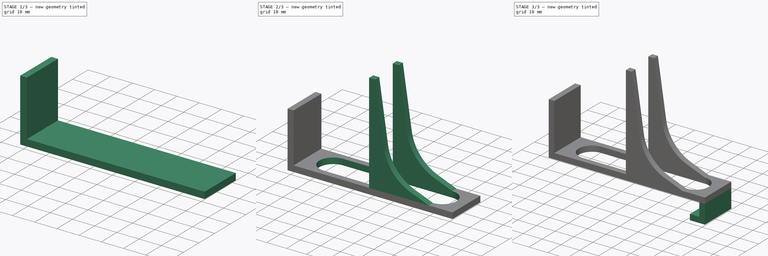
[diagram: build sequence overview — one tinted view per stage of 3, left to right]
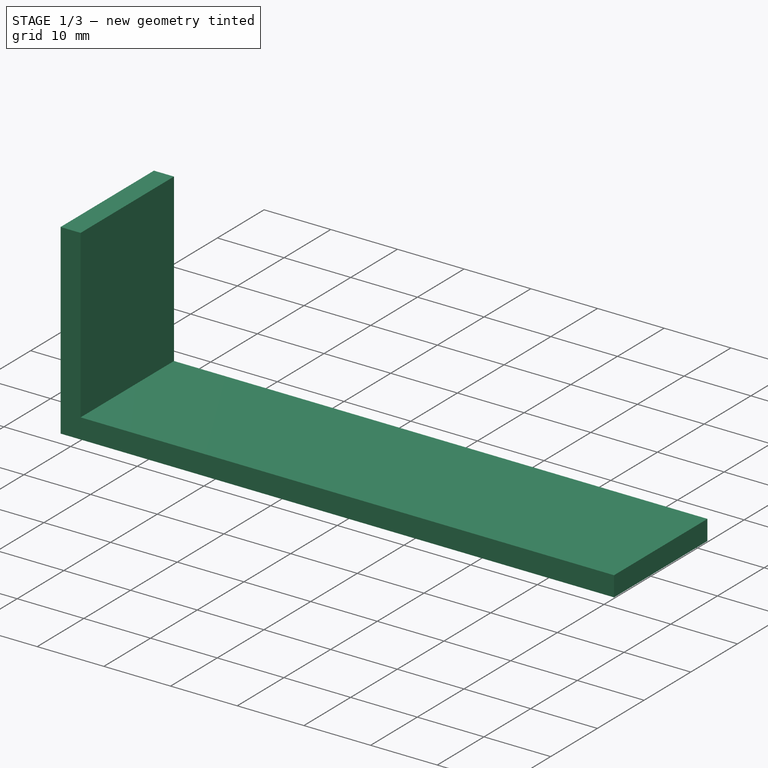
[diagram: stage 1 of 3 — iso view after this stage's code; geometry added in this stage tinted green]
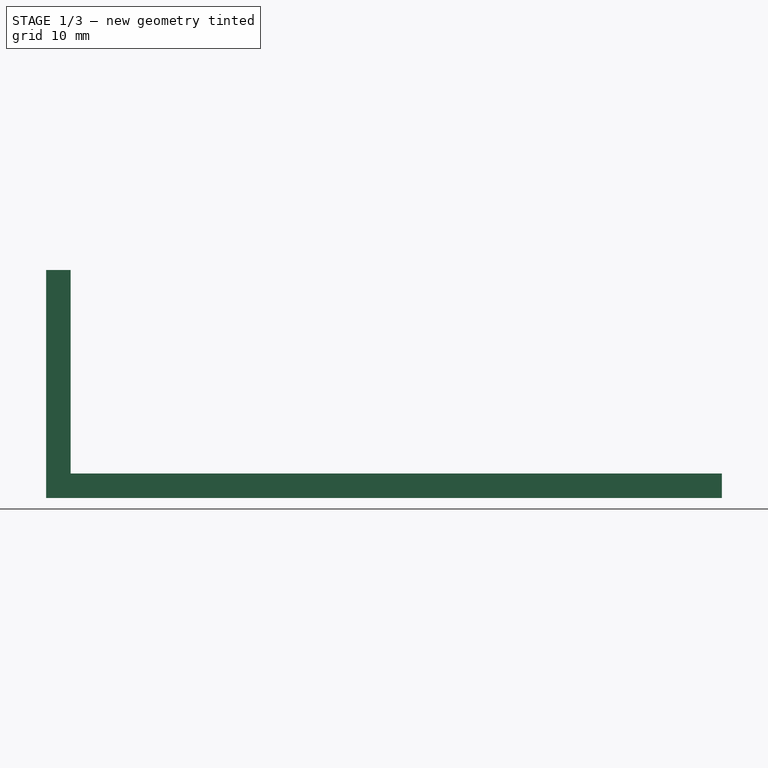
[diagram: stage 1 of 3 — front view after this stage's code; geometry added in this stage tinted green]
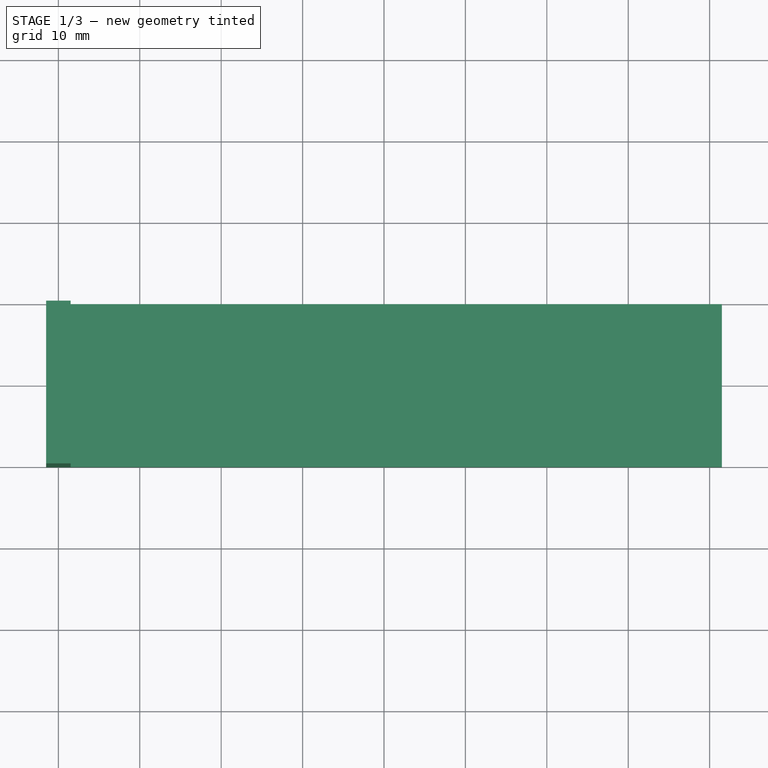
[diagram: stage 1 of 3 — top view after this stage's code; geometry added in this stage tinted green]
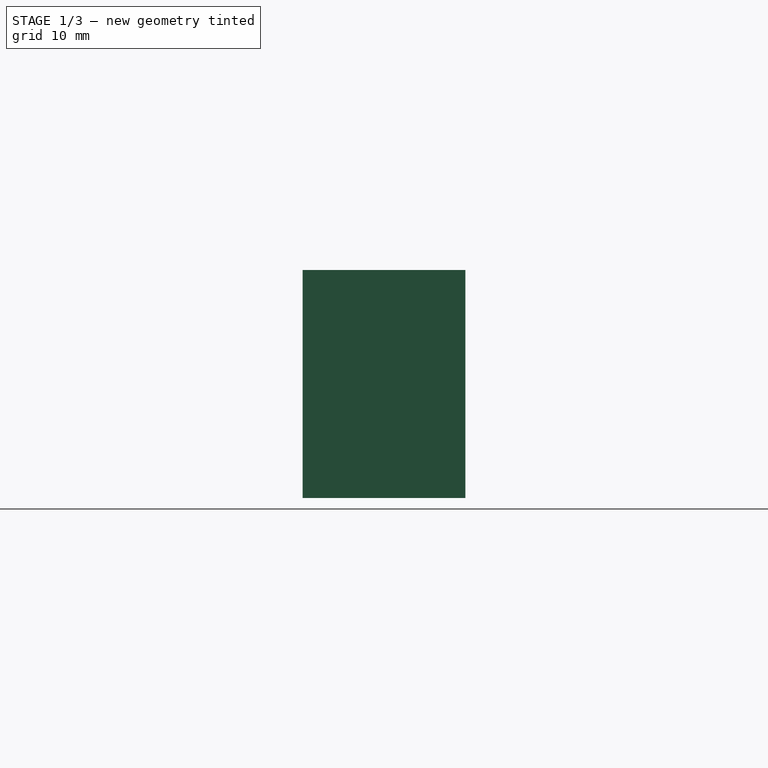
[diagram: stage 1 of 3 — right view after this stage's code; geometry added in this stage tinted green]
FCSTD DOCUMENT  (FreeCAD 0.15R4671 (Git))
Label: Kinect_holder_before_slicing
License: All rights reserved
LicenseURL: http://en.wikipedia.org/wiki/All_rights_reserved
objects: Sketcher::SketchObject×8, PartDesign::Pad×5, PartDesign::Pocket×2
note: 22 computed .brp shape members not serialized (recipe doc carries the construction recipe); baked Part::Feature solids carry a one-line shape summary decoded from their .brp

FEATURE [Sketcher::SketchObject] Sketch
  sketch-geometry (4):
    g0: LineSegment StartX=-41.5 StartY=10 StartZ=0 EndX=41.5 EndY=10 EndZ=0
    g1: LineSegment StartX=41.5 StartY=10 StartZ=0 EndX=41.5 EndY=-10 EndZ=0
    g2: LineSegment StartX=41.5 StartY=-10 StartZ=0 EndX=-41.5 EndY=-10 EndZ=0
    g3: LineSegment StartX=-41.5 StartY=-10 StartZ=0 EndX=-41.5 EndY=10 EndZ=0
  constraints (12):
    c: Coincident(g0,g1)
    c: Coincident(g1,g2)
    c: Coincident(g2,g3)
    c: Coincident(g3,g0)
    c: Horizontal(g0)
    c: Horizontal(g2)
    c: Vertical(g1)
    c: Vertical(g3)
    c: Symmetric(g1,g2,g-2)
    c: Symmetric(g0,g1,g-1)
    c: Distance(g1) = 20
    c: Distance(g0) = 83
FEATURE [PartDesign::Pad] Pad
  Length = 3
  Length2 = 100
  Sketch = -> Sketch
  Type = 0
FEATURE [Sketcher::SketchObject] Sketch001
  ExternalGeometry = -> [Pad]
  Placement = pos=(0,0,3) rot=(0,0,1;0rad)
  Support = -> Pad [Face6]
  sketch-geometry (4):
    g0: LineSegment StartX=-41.5 StartY=10 StartZ=0 EndX=-38.5 EndY=10 EndZ=0
    g1: LineSegment StartX=-38.5 StartY=10 StartZ=0 EndX=-38.5 EndY=-10 EndZ=0
    g2: LineSegment StartX=-38.5 StartY=-10 StartZ=0 EndX=-41.5 EndY=-10 EndZ=0
    g3: LineSegment StartX=-41.5 StartY=-10 StartZ=0 EndX=-41.5 EndY=10 EndZ=0
  constraints (10):
    c: Coincident(g0,g1)
    c: Coincident(g1,g2)
    c: Coincident(g2,g3)
    c: Coincident(g3,g0)
    c: Coincident(g0,g-3)
    c: Coincident(g2,g-3)
    c: Distance(g0) = 3
    c: Horizontal(g0)
    c: Vertical(g1)
    c: Horizontal(g2)
FEATURE [PartDesign::Pad] Pad001
  Length = 25
  Length2 = 100
  Sketch = -> Sketch001
  Type = 0
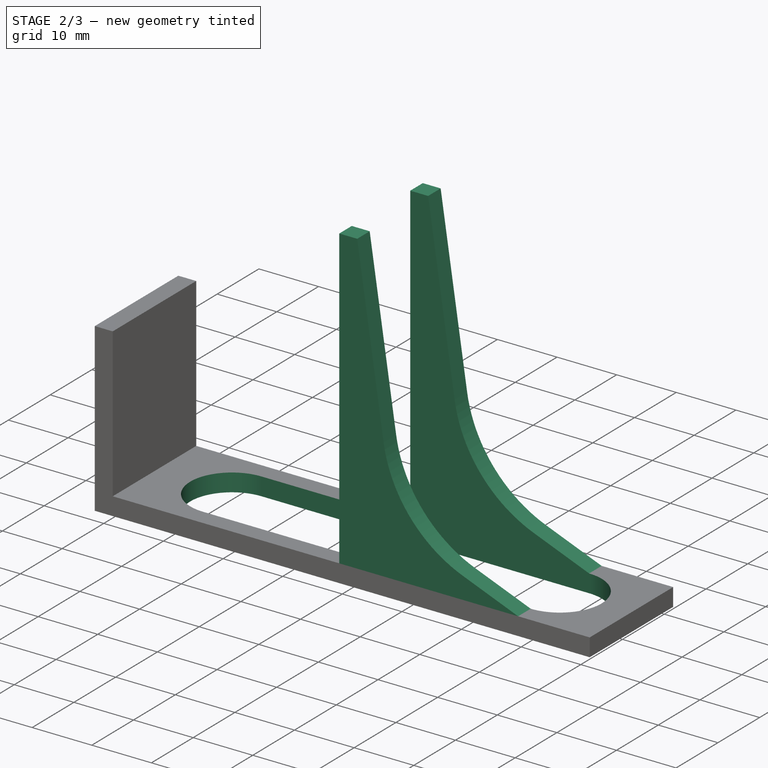
[diagram: stage 2 of 3 — iso view after this stage's code; geometry added in this stage tinted green]
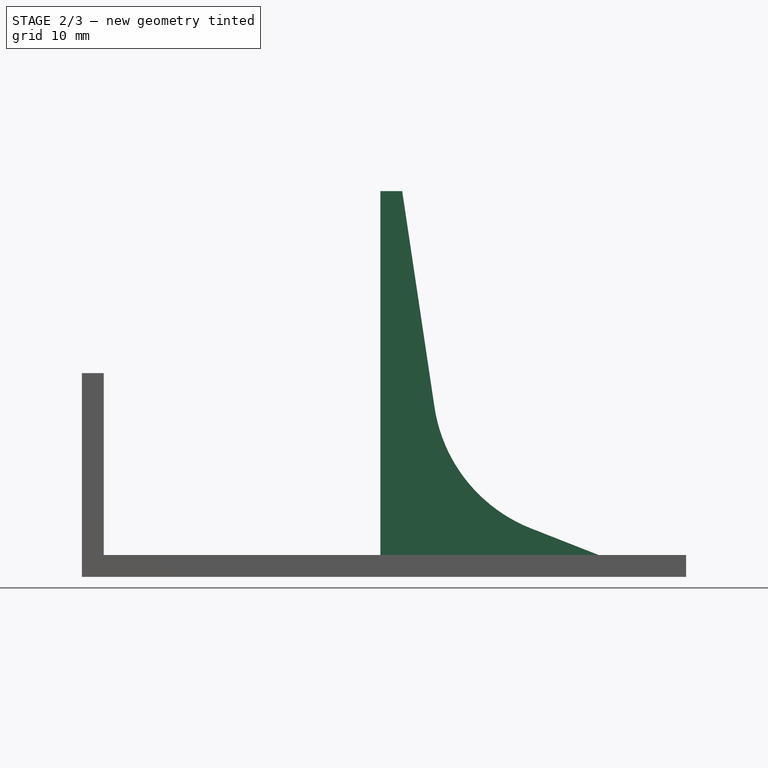
[diagram: stage 2 of 3 — front view after this stage's code; geometry added in this stage tinted green]
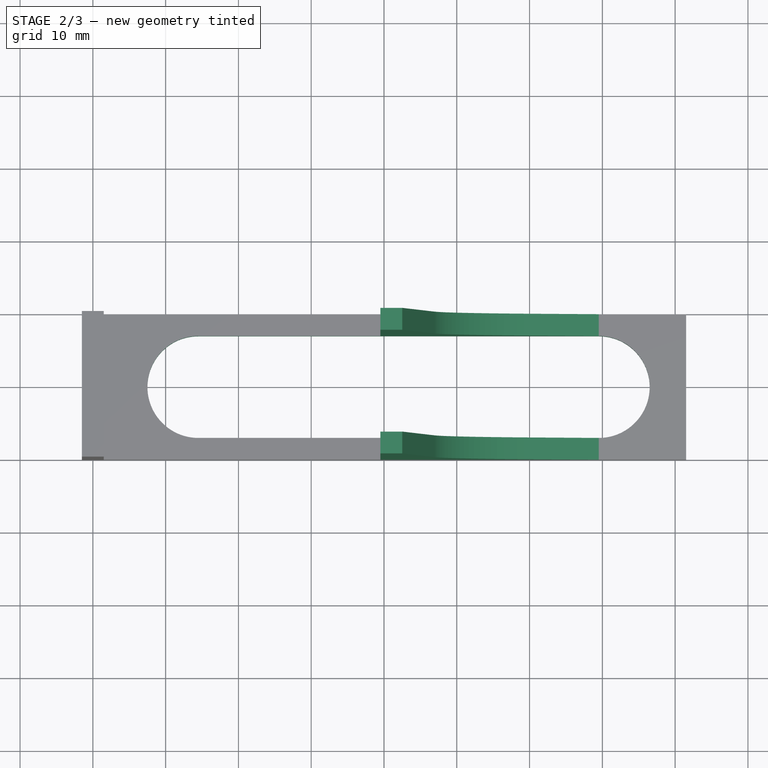
[diagram: stage 2 of 3 — top view after this stage's code; geometry added in this stage tinted green]
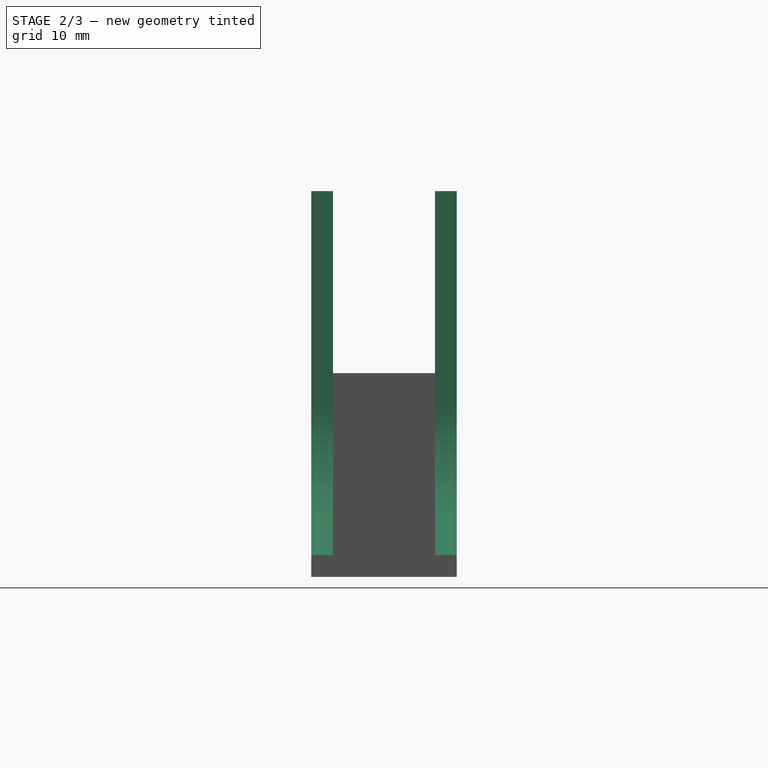
[diagram: stage 2 of 3 — right view after this stage's code; geometry added in this stage tinted green]
FEATURE [Sketcher::SketchObject] Sketch002
  ExternalGeometry = -> [Pad001]
  Placement = pos=(0,0,3) rot=(0,0,1;0rad)
  Support = -> Pad001 [Face7]
  sketch-geometry (4):
    g0: LineSegment StartX=-0.5 StartY=10 StartZ=0 EndX=29.5 EndY=10 EndZ=0
    g1: LineSegment StartX=29.5 StartY=10 StartZ=0 EndX=29.5 EndY=-10 EndZ=0
    g2: LineSegment StartX=29.5 StartY=-10 StartZ=0 EndX=-0.5 EndY=-10 EndZ=0
    g3: LineSegment StartX=-0.5 StartY=-10 StartZ=0 EndX=-0.5 EndY=10 EndZ=0
  constraints (12):
    c: Coincident(g0,g1)
    c: Coincident(g1,g2)
    c: Coincident(g2,g3)
    c: Coincident(g3,g0)
    c: Horizontal(g0)
    c: Horizontal(g2)
    c: Vertical(g1)
    c: Vertical(g3)
    c: DistanceY(g0,g-3) = 0
    c: DistanceY(g2,g-3) = 0
    c: Distance(g0) = 30
    c: DistanceX(g0,g-3) = -38
FEATURE [PartDesign::Pad] Pad002
  Length = 50
  Length2 = 100
  Sketch = -> Sketch002
  Type = 0
FEATURE [Sketcher::SketchObject] Sketch003
  Placement = pos=(0,-10,0) rot=(1,0,0;1.5708rad)
  Support = -> Pad002 [Face10]
FEATURE [Sketcher::SketchObject] Sketch004
  ExternalGeometry = -> [Pad002]
  Placement = pos=(0,-10,0) rot=(1,0,0;1.5708rad)
  Support = -> Pad002 [Face10]
  sketch-geometry (5):
    g0: LineSegment StartX=2.5 StartY=53 StartZ=0 EndX=6.93677 EndY=23.3299 EndZ=0
    g1: LineSegment StartX=20.1955 StartY=6.66423 StartZ=0 EndX=29.5 EndY=3 EndZ=0
    g2: ArcOfCircle CenterX=27.999 CenterY=26.4795 CenterZ=0 NormalX=0 NormalY=0 NormalZ=1 Radius=21.2964 StartAngle=3.29003 EndAngle=4.33723
    g3: LineSegment StartX=2.5 StartY=53 StartZ=0 EndX=63.2657 EndY=66.3099 EndZ=0
    g4: LineSegment StartX=63.2657 StartY=66.3099 StartZ=0 EndX=29.5 EndY=3 EndZ=0
  constraints (13):
    c: Tangent(g0,g2) = -1.5708
    c: Tangent(g1,g2) = -1.5708
    c: Coincident(g-4,g1)
    c: Distance(g-3,g0) = 3
    c: Distance(g0,g0) = 30
    c: Distance(g1,g1) = 10
    c: Angle(g2) = 1.0472
    c: DistanceY(g0,g-3) = 0
    c: Coincident(g3,g0)
    c: Coincident(g4,g3)
    c: Coincident(g4,g1)
    c: Distance(g3,g0) = 62.2063
    c: Distance(g3,g1) = 71.7514
FEATURE [PartDesign::Pocket] Pocket
  Length = 5
  Sketch = -> Sketch004
  Type = 1
FEATURE [Sketcher::SketchObject] Sketch005
  ExternalGeometry = -> [Pocket]
  Placement = pos=(0,0,0) rot=(1,0,0;3.14159rad)
  Support = -> Pocket [Face1]
  sketch-geometry (4):
    g0: ArcOfCircle CenterX=-25.5 CenterY=-1.4e-11 CenterZ=0 NormalX=0 NormalY=0 NormalZ=1 Radius=7 StartAngle=1.5708 EndAngle=4.71239
    g1: ArcOfCircle CenterX=29.5 CenterY=-1.4e-11 CenterZ=0 NormalX=0 NormalY=0 NormalZ=1 Radius=7 StartAngle=4.71239 EndAngle=7.85398
    g2: LineSegment StartX=-25.5 StartY=-7 StartZ=0 EndX=29.5 EndY=-7 EndZ=0
    g3: LineSegment StartX=-25.5 StartY=7 StartZ=0 EndX=29.5 EndY=7 EndZ=0
  constraints (10):
    c: Tangent(g0,g3) = 1.5708
    c: Tangent(g0,g2) = -1.5708
    c: Tangent(g2,g1) = -1.5708
    c: Tangent(g3,g1) = 1.5708
    c: Horizontal(g2)
    c: Equal(g0,g1)
    c: Symmetric(g0,g0,g-1)
    c: DistanceY(g0,g-3) = 3
    c: DistanceX(g0,g-3) = -16
    c: DistanceX(g1,g-4) = 12
FEATURE [PartDesign::Pocket] Pocket001
  Length = 5
  Sketch = -> Sketch005
  Type = 1
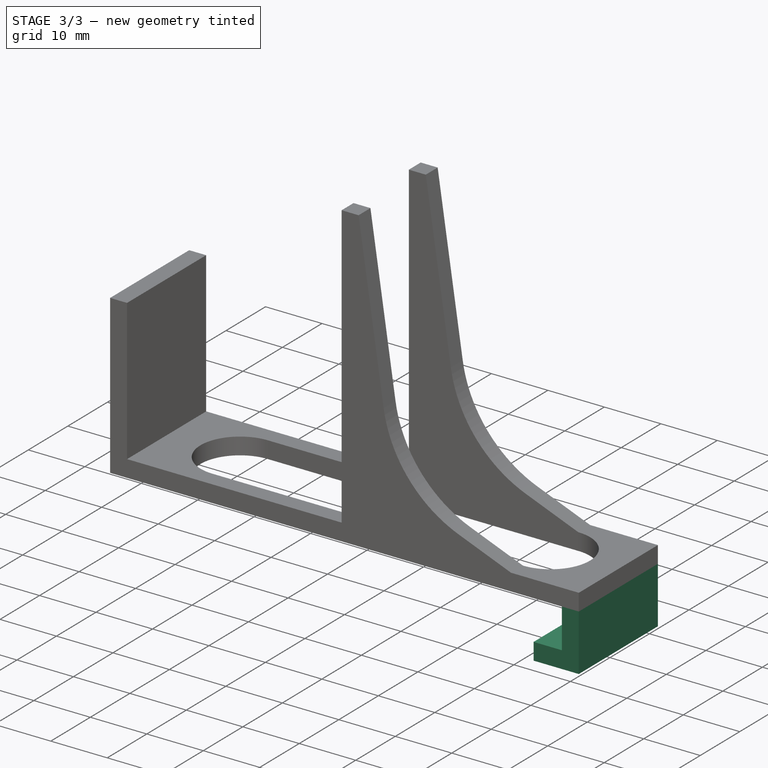
[diagram: stage 3 of 3 — iso view after this stage's code; geometry added in this stage tinted green]
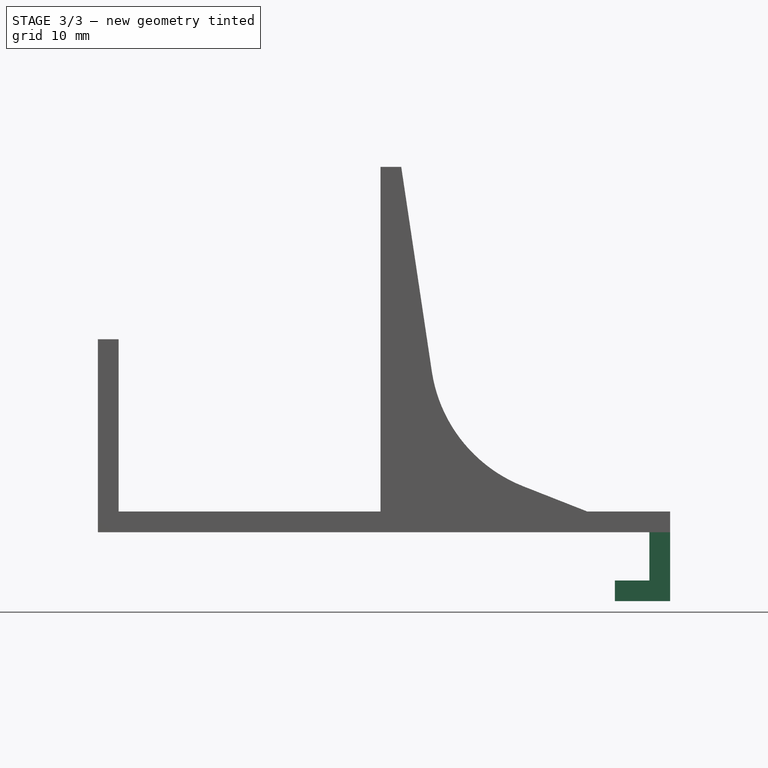
[diagram: stage 3 of 3 — front view after this stage's code; geometry added in this stage tinted green]
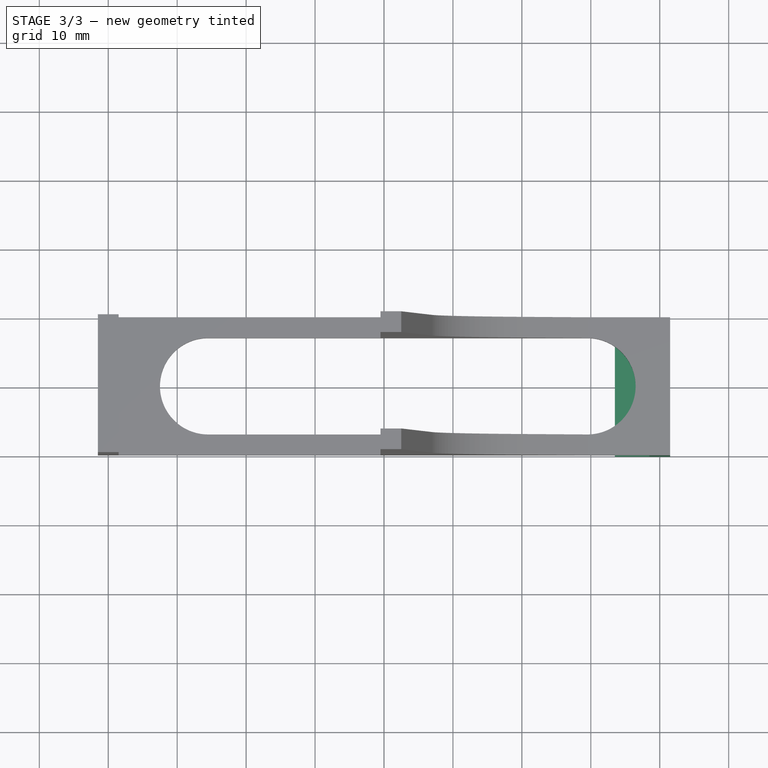
[diagram: stage 3 of 3 — top view after this stage's code; geometry added in this stage tinted green]
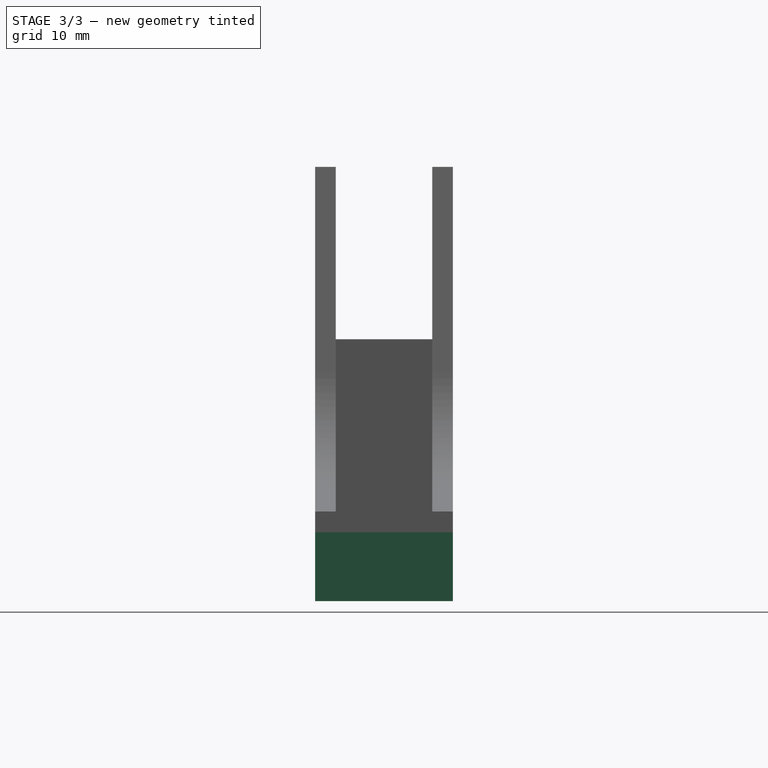
[diagram: stage 3 of 3 — right view after this stage's code; geometry added in this stage tinted green]
FEATURE [Sketcher::SketchObject] Sketch006
  ExternalGeometry = -> [Pocket001]
  Placement = pos=(0,0,0) rot=(1,0,0;3.14159rad)
  Support = -> Pocket001 [Face1]
  sketch-geometry (4):
    g0: LineSegment StartX=38.5 StartY=10 StartZ=0 EndX=41.5 EndY=10 EndZ=0
    g1: LineSegment StartX=41.5 StartY=10 StartZ=0 EndX=41.5 EndY=-10 EndZ=0
    g2: LineSegment StartX=41.5 StartY=-10 StartZ=0 EndX=38.5 EndY=-10 EndZ=0
    g3: LineSegment StartX=38.5 StartY=-10 StartZ=0 EndX=38.5 EndY=10 EndZ=0
  constraints (11):
    c: Coincident(g0,g1)
    c: Coincident(g1,g2)
    c: Coincident(g2,g3)
    c: Coincident(g3,g0)
    c: Horizontal(g0)
    c: Horizontal(g2)
    c: Vertical(g1)
    c: Vertical(g3)
    c: Coincident(g0,g-3)
    c: Coincident(g1,g-3)
    c: Distance(g0) = 3
FEATURE [PartDesign::Pad] Pad003
  Length = 10
  Length2 = 100
  Sketch = -> Sketch006
  Type = 0
FEATURE [Sketcher::SketchObject] Sketch007
  ExternalGeometry = -> [Pad003]
  Placement = pos=(38.5,0,0) rot=(0.57735,-0.57735,-0.57735;2.0944rad)
  Support = -> Pad003 [Face12]
  sketch-geometry (4):
    g0: LineSegment StartX=-10 StartY=-7 StartZ=0 EndX=10 EndY=-7 EndZ=0
    g1: LineSegment StartX=10 StartY=-7 StartZ=0 EndX=10 EndY=-10 EndZ=0
    g2: LineSegment StartX=10 StartY=-10 StartZ=0 EndX=-10 EndY=-10 EndZ=0
    g3: LineSegment StartX=-10 StartY=-10 StartZ=0 EndX=-10 EndY=-7 EndZ=0
  constraints (11):
    c: Coincident(g0,g1)
    c: Coincident(g1,g2)
    c: Coincident(g2,g3)
    c: Coincident(g3,g0)
    c: Horizontal(g0)
    c: Horizontal(g2)
    c: Vertical(g1)
    c: Vertical(g3)
    c: Coincident(g1,g-3)
    c: Coincident(g2,g-3)
    c: Distance(g3) = 3
FEATURE [PartDesign::Pad] Pad004
  Length = 5
  Length2 = 100
  Sketch = -> Sketch007
  Type = 0
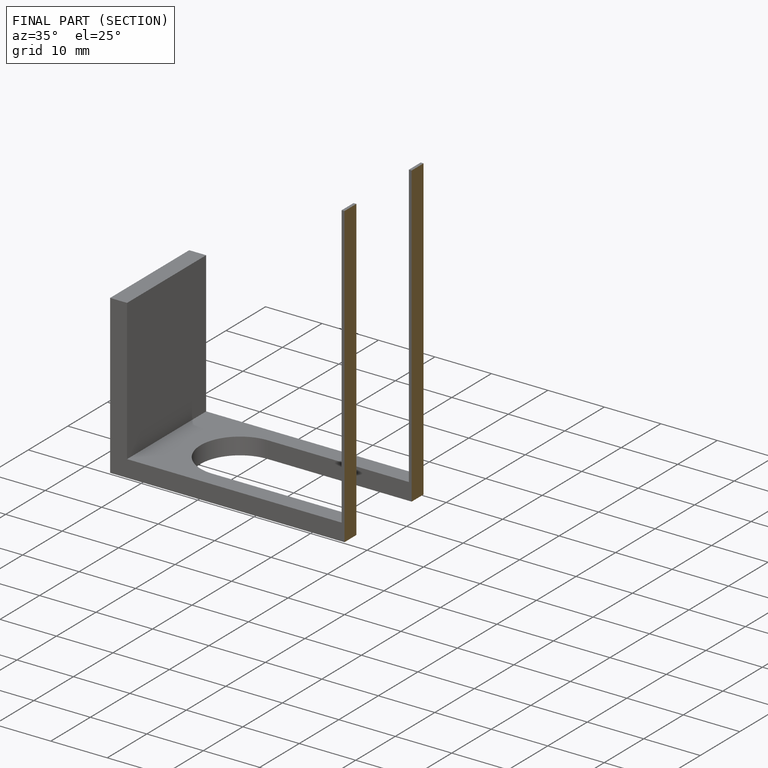
[diagram: finished part — half-section view (interior)]
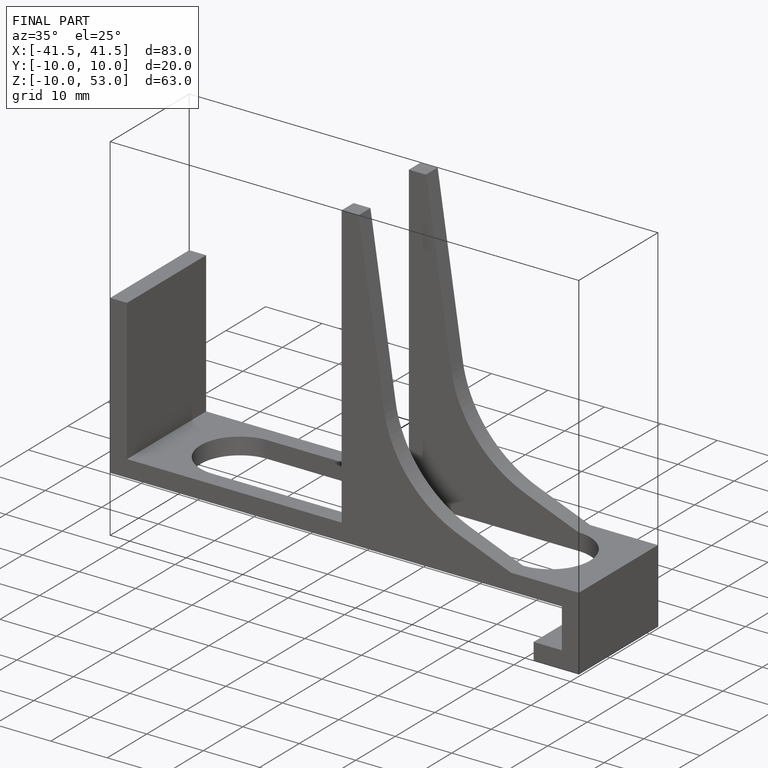
[diagram: finished part — iso view with bounding-box wireframe]
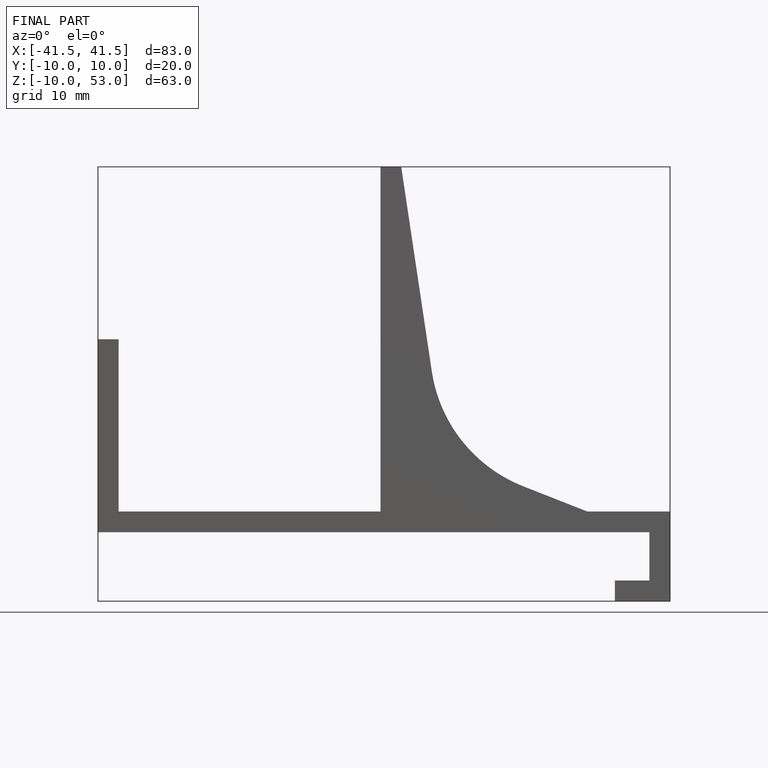
[diagram: finished part — front view with bounding-box wireframe]
